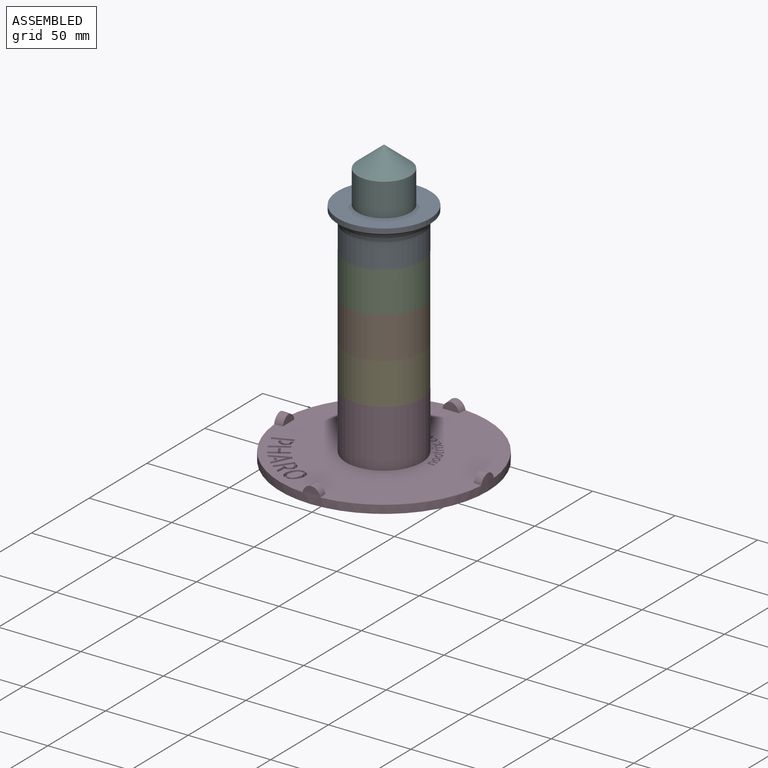
[diagram: assembled view]
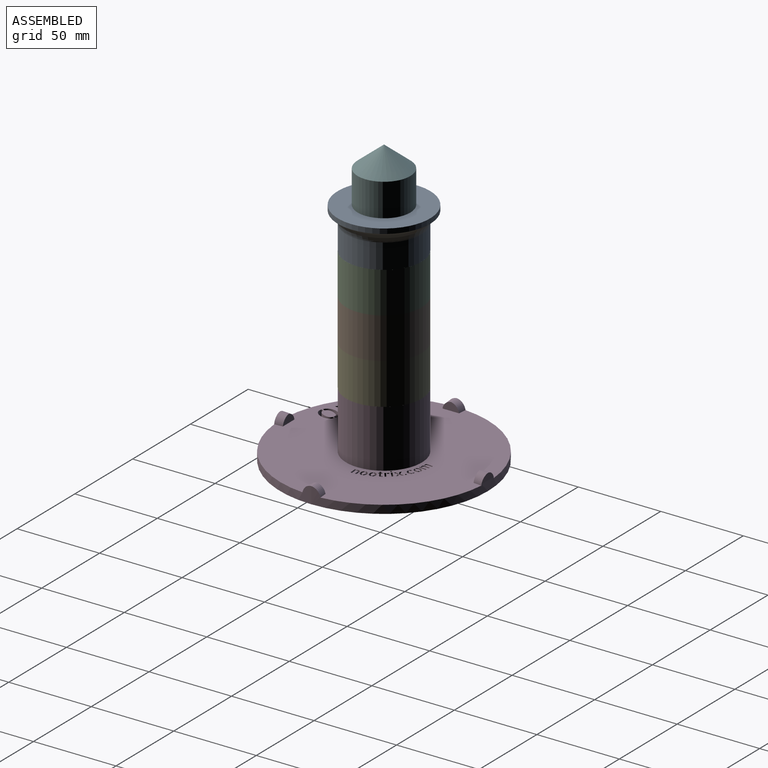
[diagram: assembled view, second angle]
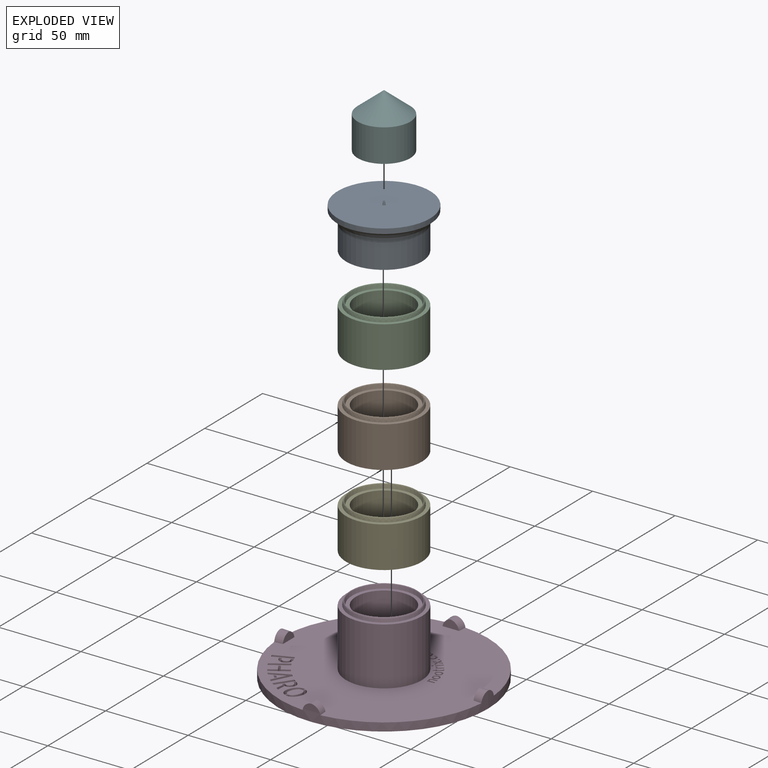
[diagram: exploded view]
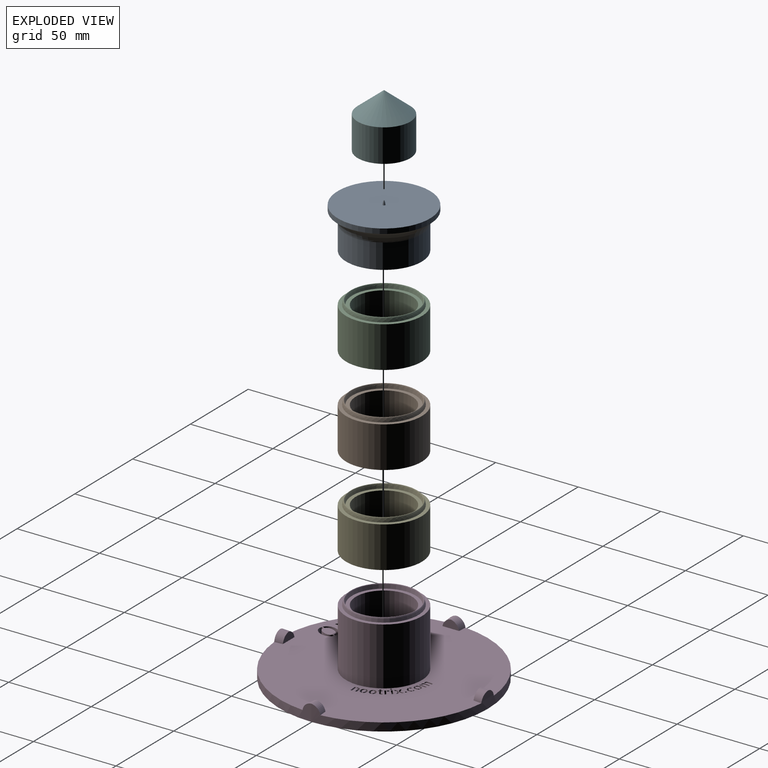
[diagram: exploded view, second angle]
ASSEMBLY  parts=6 mates=5
PART A: 9 faces, bbox 139.1x139.1x95.6 mm
  f0: plane 56x56mm, normal (0,0,1), area 2461mm2, adj f1,f8
  f1: revolved ~2.6x1.6mm, area 9mm2, adj f0
  f2: revolved ~34x17mm, area 0mm2, adj f3
  f3: plane 105.99x105.99mm, normal (0,0,-1), area 226.2mm2, adj f2,f4
  f4: revolved ~42x42mm, area 816.8mm2, adj f3,f5
  f5: plane 46x46mm, normal (0,0,-1), area 275.8mm2, adj f4,f6
  f6: cylinder r=23mm len=46mm, axis (0,0,1), area 2167.5mm2, adj f5,f7
  f7: torus R=32.84mm, axis (0,0,1), area 1395.6mm2, adj f6,f8
  f8: cylinder r=28mm len=56mm, axis (0,0,1), area 527.8mm2, adj f0,f7
PART B: 8 faces, bbox 46x46x27.6 mm
  f0: plane 38x38mm, normal (0,0,-1), area 226.2mm2, adj f1,f7
  f1: revolved ~42x42mm, area 816.6mm2, adj f0,f2
  f2: plane 46x46mm, normal (0,0,-1), area 276.5mm2, adj f1,f3
  f3: cylinder r=23mm len=46mm, axis (0,0,1), area 3612.8mm2, adj f2,f4
  f4: plane 46x46mm, normal (0,0,1), area 302.7mm2, adj f3,f5
  f5: revolved ~41.6x41.6mm, area 700.9mm2, adj f4,f6
  f6: plane 38.4x38.4mm, normal (0,0,1), area 250.2mm2, adj f5,f7
  f7: cylinder r=17mm len=34mm, axis (0,0,1), area 2670.4mm2, adj f0,f6
PART C: same geometry as B
PART D: 390 faces, bbox 126.5x126.5x42.6 mm
  f0: plane 125.53x125.53mm, normal (0,0,1), area 10276.3mm2, adj f3,f4,f8,f9,f10,f11,f12,f13
  f1: plane 126x126mm, normal (0,0,-1), area 11244.9mm2, adj f2,f3,f20,f21,f22,f23,f24,f25
  f2: cylinder r=17mm len=40mm, axis (0,0,1), area 4272.6mm2, adj f1,f7
  f3: cylinder r=63mm len=126mm, axis (0,0,1), area 2138.5mm2, adj f0,f1,f9,f10,f12,f13,f15,f16
  f4: cylinder r=23mm len=46mm, axis (0,0,1), area 5058mm2, adj f0,f5
  f5: plane 46x46mm, normal (0,0,1), area 302.7mm2, adj f4,f6
  f6: revolved ~41.6x41.6mm, area 700.9mm2, adj f5,f7
  f7: plane 38.4x38.4mm, normal (0,0,1), area 250.2mm2, adj f2,f6
  f8: plane 10x4.93mm, normal (-1,0,0), area 35.4mm2, adj f0,f9,f10
  f9: cylinder r=6mm len=5.88mm, axis (-1,0.09,0), area 39.5mm2, adj f0,f3,f8,f10
  f10: cylinder r=6mm len=5.88mm, axis (-1,-0.09,0), area 39.5mm2, adj f0,f3,f8,f9
  f11: plane 10x4.93mm, normal (0,1,0), area 35.4mm2, adj f0,f12,f13
  f12: cylinder r=6mm len=5.88mm, axis (0.09,1,0), area 39.5mm2, adj f0,f3,f11,f13
  f13: cylinder r=6mm len=5.88mm, axis (-0.09,1,0), area 39.5mm2, adj f0,f3,f11,f12
  f14: plane 10x4.93mm, normal (1,0,0), area 35.4mm2, adj f0,f15,f16
  f15: cylinder r=6mm len=5.88mm, axis (1,-0.09,0), area 39.5mm2, adj f0,f3,f14,f16
  f16: cylinder r=6mm len=5.88mm, axis (1,0.09,0), area 39.5mm2, adj f0,f3,f14,f15
  f17: plane 10x4.93mm, normal (0,-1,0), area 35.4mm2, adj f0,f18,f19
  f18: cylinder r=6mm len=5.88mm, axis (-0.09,-1,0), area 39.5mm2, adj f0,f3,f17,f19
  f19: cylinder r=6mm len=5.88mm, axis (0.09,-1,0), area 39.5mm2, adj f0,f3,f17,f18
  f20: plane 10.88x5mm, normal (-0.38,0.93,0), area 58.7mm2, adj f0,f1,f21,f23
  f21: plane 5x1.77mm, normal (-0.93,-0.38,0), area 9.6mm2, adj f0,f1,f20,f22
  f22: plane 10.88x5mm, normal (0.38,-0.93,0), area 58.7mm2, adj f0,f1,f21,f23
  f23: plane 5x1.77mm, normal (0.93,0.38,0), area 9.6mm2, adj f0,f1,f20,f22
  f24: extruded ~5x1.08mm, area 5.9mm2, adj f0,f1,f25,f41
  f25: extruded ~5x1.45mm, area 7.3mm2, adj f0,f1,f24,f26
  f26: extruded ~5x1.87mm, area 9.8mm2, adj f0,f1,f25,f27
  f27: extruded ~5x1.69mm, area 9.8mm2, adj f0,f1,f26,f28
  f28: extruded ~5x1.04mm, area 7.3mm2, adj f0,f1,f27,f29
  f29: extruded ~5x1.08mm, area 5.9mm2, adj f0,f1,f28,f30
  f30: extruded ~5x1.07mm, area 5.4mm2, adj f0,f1,f29,f31
  f31: plane 5x1.45mm, normal (0.92,-0.39,0), area 7.9mm2, adj f0,f1,f30,f32
  f32: extruded ~5x1.86mm, area 9.5mm2, adj f0,f1,f31,f33
  f33: extruded ~5x1.78mm, area 9.3mm2, adj f0,f1,f32,f34
  f34: extruded ~5x1.62mm, area 10.5mm2, adj f0,f1,f33,f35
  f35: extruded ~5x2.18mm, area 12.8mm2, adj f0,f1,f34,f36
  f36: extruded ~5x2.45mm, area 12.7mm2, adj f0,f1,f35,f37
  f37: extruded ~5x2.08mm, area 10.5mm2, adj f0,f1,f36,f38
  f38: extruded ~5x1.65mm, area 9.4mm2, adj f0,f1,f37,f39
  f39: extruded ~5x1.48mm, area 9.4mm2, adj f0,f1,f38,f40
  f40: plane 5x1.45mm, normal (0.92,-0.39,0), area 7.9mm2, adj f0,f1,f39,f41
  f41: extruded ~5x0.79mm, area 5.3mm2, adj f0,f1,f24,f40
  f42: plane 11.25x5.28mm, normal (0.43,-0.91,0), area 62.1mm2, adj f0,f1,f43,f48
  f43: plane 5x1.42mm, normal (0.71,0.7,0), area 10mm2, adj f0,f1,f42,f44
  f44: plane 8.43x5mm, normal (-0.43,0.9,0), area 46.6mm2, adj f0,f1,f43,f45
  f45: plane 8.34x5mm, normal (0.9,-0.45,0), area 46.5mm2, adj f0,f1,f44,f46
  f46: plane 5x1.41mm, normal (0.71,0.7,0), area 9.9mm2, adj f0,f1,f45,f47
  f47: plane 11.13x5.51mm, normal (-0.9,0.44,0), area 62.1mm2, adj f0,f1,f46,f48
  f48: plane 5x1.35mm, normal (-0.71,-0.7,0), area 9.5mm2, adj f0,f1,f42,f47
  f49: plane 9.88x6.36mm, normal (-0.54,0.84,0), area 58.7mm2, adj f0,f1,f50,f52
  f50: plane 5x1.63mm, normal (-0.84,-0.54,0), area 9.7mm2, adj f0,f1,f49,f51
  f51: plane 9.88x6.36mm, normal (0.54,-0.84,0), area 58.7mm2, adj f0,f1,f50,f52
  f52: plane 5x1.63mm, normal (0.84,0.54,0), area 9.7mm2, adj f0,f1,f49,f51
  f53: plane 5x3.73mm, normal (-0.84,-0.54,0), area 22.2mm2, adj f0,f1,f54,f60
  f54: plane 5x1.1mm, normal (0.54,-0.84,0), area 6.5mm2, adj f0,f1,f53,f55
  f55: plane 5x3.73mm, normal (0.84,0.54,0), area 22.2mm2, adj f0,f1,f54,f56
  f56: plane 5x4.45mm, normal (0.54,-0.84,0), area 26.5mm2, adj f0,f1,f55,f57
  f57: plane 5x1.61mm, normal (0.84,0.54,0), area 9.6mm2, adj f0,f1,f56,f58
  f58: plane 9.88x6.36mm, normal (-0.54,0.84,0), area 58.7mm2, adj f0,f1,f57,f59
  f59: plane 5x1.61mm, normal (-0.84,-0.54,0), area 9.6mm2, adj f0,f1,f58,f60
  f60: plane 5x4.33mm, normal (0.54,-0.84,0), area 25.7mm2, adj f0,f1,f53,f59
  f61: plane 5x0.72mm, normal (0.93,0.38,0), area 3.9mm2, adj f0,f1,f62,f82
  f62: extruded ~5x1.18mm, area 6.1mm2, adj f0,f1,f61,f63
  f63: extruded ~5x0.86mm, area 4.5mm2, adj f0,f1,f62,f64
  f64: extruded ~5x0.57mm, area 4mm2, adj f0,f1,f63,f65
  f65: extruded ~5x0.58mm, area 3.3mm2, adj f0,f1,f64,f66
  f66: extruded ~5x1.18mm, area 6.1mm2, adj f0,f1,f65,f67
  f67: extruded ~5x0.88mm, area 4.5mm2, adj f0,f1,f66,f68
  f68: extruded ~5x0.6mm, area 3.7mm2, adj f0,f1,f67,f69
  f69: extruded ~5x0.6mm, area 3.5mm2, adj f0,f1,f68,f70
  f70: plane 5x1.02mm, normal (-0.93,-0.38,0), area 5.5mm2, adj f0,f1,f69,f71
  f71: plane 5x1.3mm, normal (0.38,-0.93,0), area 7mm2, adj f0,f1,f70,f72
  f72: plane 5x0.71mm, normal (0.93,0.38,0), area 3.8mm2, adj f0,f1,f71,f73
  f73: extruded ~5x1.46mm, area 8.6mm2, adj f0,f1,f72,f74
  f74: extruded ~5x1.2mm, area 7.6mm2, adj f0,f1,f73,f75
  f75: extruded ~5x1.45mm, area 7.5mm2, adj f0,f1,f74,f76
  f76: extruded ~5x1.61mm, area 8.3mm2, adj f0,f1,f75,f77
  f77: extruded ~5x1.28mm, area 7.9mm2, adj f0,f1,f76,f78
  f78: extruded ~5x1.31mm, area 7.5mm2, adj f0,f1,f77,f79
  f79: extruded ~5x1.49mm, area 7.5mm2, adj f0,f1,f78,f80
  f80: extruded ~5x1.46mm, area 7.5mm2, adj f0,f1,f79,f81
  f81: plane 5x0.75mm, normal (-0.93,-0.38,0), area 4.1mm2, adj f0,f1,f80,f82
  f82: plane 5x1.34mm, normal (0.38,-0.93,0), area 7.2mm2, adj f0,f1,f61,f81
  f83: extruded ~5x1.71mm, area 11.4mm2, adj f0,f1,f84,f107
  f84: extruded ~5x1.46mm, area 7.9mm2, adj f0,f1,f83,f85
  f85: extruded ~5x1.48mm, area 7.5mm2, adj f0,f1,f84,f86
  f86: extruded ~5x1.33mm, area 7.5mm2, adj f0,f1,f85,f87
  f87: extruded ~5x1.09mm, area 7.5mm2, adj f0,f1,f86,f88
  f88: plane 5x0.67mm, normal (-0.56,-0.83,0), area 4.1mm2, adj f0,f1,f87,f89
  f89: plane 5x1.2mm, normal (0.83,-0.56,0), area 7.2mm2, adj f0,f1,f88,f90
  f90: plane 5x0.64mm, normal (0.56,0.83,0), area 3.9mm2, adj f0,f1,f89,f91
  f91: extruded ~5x0.86mm, area 6.1mm2, adj f0,f1,f90,f92
  f92: extruded ~5x0.86mm, area 4.5mm2, adj f0,f1,f91,f93
  f93: extruded ~5x0.78mm, area 4mm2, adj f0,f1,f92,f94
  f94: extruded ~5x0.59mm, area 3.3mm2, adj f0,f1,f93,f95
  f95: extruded ~5x0.89mm, area 6.1mm2, adj f0,f1,f94,f96
  f96: extruded ~5x0.81mm, area 4.5mm2, adj f0,f1,f95,f97
  f97: extruded ~5x0.75mm, area 3.8mm2, adj f0,f1,f96,f98
  f98: extruded ~5x0.65mm, area 3.6mm2, adj f0,f1,f97,f99
  f99: plane 5x0.9mm, normal (-0.56,-0.83,0), area 5.4mm2, adj f0,f1,f98,f100
  f100: plane 5x1.16mm, normal (0.83,-0.56,0), area 7mm2, adj f0,f1,f99,f101
  f101: plane 5x0.74mm, normal (0.56,0.83,0), area 4.5mm2, adj f0,f1,f100,f102
  f102: extruded ~5x0.14mm, area 0.8mm2, adj f0,f1,f101,f103
  f103: extruded ~5x0.09mm, area 0.5mm2, adj f0,f1,f102,f104
  f104: plane 5x4.76mm, normal (0.99,-0.12,0), area 24mm2, adj f0,f1,f103,f105
  f105: plane 5x1.67mm, normal (0.56,0.83,0), area 10.1mm2, adj f0,f1,f104,f106
  f106: plane 5.33x5mm, normal (-1,0.07,0), area 26.7mm2, adj f0,f1,f105,f107
  f107: extruded ~5x2.06mm, area 10.5mm2, adj f0,f1,f83,f106
  f108: extruded ~5x1.64mm, area 9.4mm2, adj f0,f1,f109,f125
  f109: extruded ~5x1.49mm, area 9.4mm2, adj f0,f1,f108,f110
  f110: plane 5x1.45mm, normal (-0.92,0.39,0), area 7.9mm2, adj f0,f1,f109,f111
  f111: extruded ~5x0.79mm, area 5.3mm2, adj f0,f1,f110,f112
  f112: extruded ~5x1.08mm, area 5.9mm2, adj f0,f1,f111,f113
  f113: extruded ~5x1.46mm, area 7.3mm2, adj f0,f1,f112,f114
  f114: extruded ~5x1.87mm, area 9.8mm2, adj f0,f1,f113,f115
  f115: extruded ~5x1.69mm, area 9.7mm2, adj f0,f1,f114,f116
  f116: extruded ~5x1.04mm, area 7.3mm2, adj f0,f1,f115,f117
  f117: extruded ~5x1.08mm, area 5.8mm2, adj f0,f1,f116,f118
  f118: extruded ~5x1.07mm, area 5.4mm2, adj f0,f1,f117,f119
  f119: plane 5x1.47mm, normal (-0.92,0.39,0), area 8mm2, adj f0,f1,f118,f120
  f120: extruded ~5x1.86mm, area 9.5mm2, adj f0,f1,f119,f121
  f121: extruded ~5x1.79mm, area 9.4mm2, adj f0,f1,f120,f122
  f122: extruded ~5x1.61mm, area 10.5mm2, adj f0,f1,f121,f123
  f123: extruded ~5x2.17mm, area 12.7mm2, adj f0,f1,f122,f124
  f124: extruded ~5x2.45mm, area 12.8mm2, adj f0,f1,f123,f125
  f125: extruded ~5x2.08mm, area 10.5mm2, adj f0,f1,f108,f124
  f126: plane 9.7x6.62mm, normal (-0.83,0.56,0), area 58.7mm2, adj f0,f1,f127,f129
  f127: plane 5x1.58mm, normal (-0.56,-0.83,0), area 9.6mm2, adj f0,f1,f126,f128
  f128: plane 9.7x6.62mm, normal (0.83,-0.56,0), area 58.7mm2, adj f0,f1,f127,f129
  f129: plane 5x1.58mm, normal (0.56,0.83,0), area 9.6mm2, adj f0,f1,f126,f128
  f130: plane 5x2.17mm, normal (0.71,0.7,0), area 15.2mm2, adj f0,f1,f131,f133
  f131: plane 5x1.24mm, normal (-0.9,0.44,0), area 6.9mm2, adj f0,f1,f130,f132
  f132: plane 5x1.52mm, normal (-0.71,-0.7,0), area 10.7mm2, adj f0,f1,f131,f133
  f133: plane 5x1.24mm, normal (0.43,-0.9,0), area 6.8mm2, adj f0,f1,f130,f132
  f134: plane 5x0.92mm, normal (-1,-0.08,0), area 4.6mm2, adj f0,f1,f135,f138
  f135: plane 5x3.85mm, normal (0.08,-1,0), area 19.3mm2, adj f0,f1,f134,f136
  f136: plane 5x0.42mm, normal (0.3,-0.95,0), area 2.2mm2, adj f0,f1,f135,f137
  f137: plane 5x0.82mm, normal (1,0.08,0), area 4.1mm2, adj f0,f1,f136,f138
  f138: plane 5x4.28mm, normal (-0.08,1,0), area 21.5mm2, adj f0,f1,f134,f137
  f139: extruded ~5x0.62mm, area 3.7mm2, adj f0,f1,f140,f154
  f140: extruded ~5x0.65mm, area 3.9mm2, adj f0,f1,f139,f141
  f141: plane 5x0.7mm, normal (0.95,-0.31,0), area 3.7mm2, adj f0,f1,f140,f142
  f142: extruded ~5x0.29mm, area 2mm2, adj f0,f1,f141,f143
  f143: extruded ~5x0.39mm, area 2.1mm2, adj f0,f1,f142,f144
  f144: extruded ~5x0.48mm, area 2.4mm2, adj f0,f1,f143,f145
  f145: extruded ~5x0.52mm, area 2.7mm2, adj f0,f1,f144,f146
  f146: extruded ~5x0.84mm, area 5mm2, adj f0,f1,f145,f147
  f147: extruded ~5x0.73mm, area 4mm2, adj f0,f1,f146,f148
  f148: plane 5x0.68mm, normal (0.95,-0.31,0), area 3.5mm2, adj f0,f1,f147,f149
  f149: extruded ~5x0.77mm, area 3.9mm2, adj f0,f1,f148,f150
  f150: extruded ~5x0.69mm, area 3.7mm2, adj f0,f1,f149,f151
  f151: extruded ~5x0.56mm, area 3.8mm2, adj f0,f1,f150,f152
  f152: extruded ~5x0.74mm, area 4.2mm2, adj f0,f1,f151,f153
  f153: extruded ~5x0.82mm, area 4.2mm2, adj f0,f1,f152,f154
  f154: extruded ~5x0.76mm, area 3.9mm2, adj f0,f1,f139,f153
  f155: extruded ~5x0.4mm, area 2.1mm2, adj f0,f1,f156,f170
  f156: extruded ~5x0.48mm, area 2.4mm2, adj f0,f1,f155,f157
  f157: extruded ~5x0.52mm, area 2.7mm2, adj f0,f1,f156,f158
  f158: extruded ~5x0.83mm, area 5mm2, adj f0,f1,f157,f159
  f159: extruded ~5x0.74mm, area 4mm2, adj f0,f1,f158,f160
  f160: plane 5x0.7mm, normal (-0.95,0.31,0), area 3.7mm2, adj f0,f1,f159,f161
  f161: extruded ~5x0.77mm, area 3.9mm2, adj f0,f1,f160,f162
  f162: extruded ~5x0.69mm, area 3.7mm2, adj f0,f1,f161,f163
  f163: extruded ~5x0.56mm, area 3.8mm2, adj f0,f1,f162,f164
  f164: extruded ~5x0.75mm, area 4.2mm2, adj f0,f1,f163,f165
  f165: extruded ~5x0.83mm, area 4.2mm2, adj f0,f1,f164,f166
  f166: extruded ~5x0.76mm, area 3.9mm2, adj f0,f1,f165,f167
  f167: extruded ~5x0.63mm, area 3.7mm2, adj f0,f1,f166,f168
  f168: extruded ~5x0.66mm, area 4mm2, adj f0,f1,f167,f169
  f169: plane 5x0.68mm, normal (-0.95,0.31,0), area 3.6mm2, adj f0,f1,f168,f170
  f170: extruded ~5x0.29mm, area 2mm2, adj f0,f1,f155,f169
  f171: plane 5x0.92mm, normal (-0.11,-0.99,0), area 4.6mm2, adj f0,f1,f172,f175
  f172: plane 5x3.83mm, normal (0.99,-0.11,0), area 19.3mm2, adj f0,f1,f171,f173
  f173: plane 5x0.45mm, normal (0.99,0.11,0), area 2.3mm2, adj f0,f1,f172,f174
  f174: plane 5x0.82mm, normal (0.11,0.99,0), area 4.1mm2, adj f0,f1,f173,f175
  f175: plane 5x4.27mm, normal (-0.99,0.11,0), area 21.5mm2, adj f0,f1,f171,f174
  f176: plane 5x0.6mm, normal (-0.99,0.11,0), area 3mm2, adj f0,f1,f177,f191
  f177: extruded ~5x0.42mm, area 2.1mm2, adj f0,f1,f176,f178
  f178: extruded ~5x0.23mm, area 1.1mm2, adj f0,f1,f177,f179
  f179: extruded ~5x0.3mm, area 1.7mm2, adj f0,f1,f178,f180
  f180: extruded ~5x0.3mm, area 1.6mm2, adj f0,f1,f179,f181
  f181: extruded ~5x0.42mm, area 2.1mm2, adj f0,f1,f180,f182
  f182: extruded ~5x0.49mm, area 2.5mm2, adj f0,f1,f181,f183
  f183: plane 5x2.32mm, normal (-0.99,0.11,0), area 11.7mm2, adj f0,f1,f182,f184
  f184: plane 5x0.91mm, normal (-0.11,-0.99,0), area 4.6mm2, adj f0,f1,f183,f185
  f185: plane 5x2.91mm, normal (0.99,-0.11,0), area 14.6mm2, adj f0,f1,f184,f186
  f186: extruded ~5x0.57mm, area 2.9mm2, adj f0,f1,f185,f187
  f187: extruded ~5x0.48mm, area 2.6mm2, adj f0,f1,f186,f188
  f188: extruded ~5x0.36mm, area 2.5mm2, adj f0,f1,f187,f189
  f189: extruded ~5x0.47mm, area 2.5mm2, adj f0,f1,f188,f190
  f190: extruded ~5x0.4mm, area 2mm2, adj f0,f1,f189,f191
  f191: extruded ~5x0.44mm, area 2.3mm2, adj f0,f1,f176,f190
  f192: extruded ~5x0.42mm, area 2.1mm2, adj f0,f1,f193,f208
  f193: extruded ~5x0.41mm, area 2.2mm2, adj f0,f1,f192,f194
  f194: plane 5x0.6mm, normal (-0.99,0.11,0), area 3mm2, adj f0,f1,f193,f195
  f195: extruded ~5x0.37mm, area 1.9mm2, adj f0,f1,f194,f196
  f196: extruded ~5x0.27mm, area 1.4mm2, adj f0,f1,f195,f197
  f197: extruded ~5x0.3mm, area 1.7mm2, adj f0,f1,f196,f198
  f198: extruded ~5x0.3mm, area 1.6mm2, adj f0,f1,f197,f199
  f199: extruded ~5x0.42mm, area 2.1mm2, adj f0,f1,f198,f200
  f200: plane 5x2.81mm, normal (-0.99,0.11,0), area 14.1mm2, adj f0,f1,f199,f201
  f201: plane 5x0.92mm, normal (-0.11,-0.99,0), area 4.6mm2, adj f0,f1,f200,f202
  f202: plane 5x2.4mm, normal (0.99,-0.11,0), area 12.1mm2, adj f0,f1,f201,f203
  f203: extruded ~5x0.37mm, area 1.9mm2, adj f0,f1,f202,f204
  f204: extruded ~5x0.35mm, area 1.7mm2, adj f0,f1,f203,f205
  f205: extruded ~5x0.33mm, area 1.6mm2, adj f0,f1,f204,f206
  f206: extruded ~5x0.31mm, area 1.6mm2, adj f0,f1,f205,f207
  f207: extruded ~5x0.48mm, area 3.2mm2, adj f0,f1,f206,f208
  f208: extruded ~5x0.57mm, area 3.1mm2, adj f0,f1,f192,f207
  f209: extruded ~5x0.71mm, area 3.7mm2, adj f0,f1,f210,f224
  f210: extruded ~5x0.78mm, area 3.9mm2, adj f0,f1,f209,f211
  f211: plane 5x0.67mm, normal (0.4,-0.92,0), area 3.7mm2, adj f0,f1,f210,f212
  f212: extruded ~5x0.39mm, area 2mm2, adj f0,f1,f211,f213
  f213: extruded ~5x0.37mm, area 2.1mm2, adj f0,f1,f212,f214
  f214: extruded ~5x0.35mm, area 2.4mm2, adj f0,f1,f213,f215
  f215: extruded ~5x0.47mm, area 2.7mm2, adj f0,f1,f214,f216
  f216: extruded ~5x0.97mm, area 5mm2, adj f0,f1,f215,f217
  f217: extruded ~5x0.68mm, area 4mm2, adj f0,f1,f216,f218
  f218: plane 5x0.65mm, normal (0.4,-0.92,0), area 3.5mm2, adj f0,f1,f217,f219
  f219: extruded ~5x0.59mm, area 3.9mm2, adj f0,f1,f218,f220
  f220: extruded ~5x0.65mm, area 3.7mm2, adj f0,f1,f219,f221
  f221: extruded ~5x0.76mm, area 3.8mm2, adj f0,f1,f220,f222
  f222: extruded ~5x0.81mm, area 4.2mm2, adj f0,f1,f221,f223
  f223: extruded ~5x0.71mm, area 4.2mm2, adj f0,f1,f222,f224
  f224: extruded ~5x0.6mm, area 3.9mm2, adj f0,f1,f209,f223
  f225: plane 5x0.53mm, normal (0.52,-0.85,0), area 3.1mm2, adj f0,f1,f226,f249
  f226: plane 5x0.58mm, normal (0.85,0.52,0), area 3.4mm2, adj f0,f1,f225,f227
  f227: plane 5x1.04mm, normal (0.52,-0.85,0), area 6.1mm2, adj f0,f1,f226,f228
  f228: plane 5x0.79mm, normal (0.85,0.52,0), area 4.6mm2, adj f0,f1,f227,f229
  f229: plane 5x1.04mm, normal (-0.52,0.85,0), area 6.1mm2, adj f0,f1,f228,f230
  f230: plane 5x0.48mm, normal (0.85,0.52,0), area 2.8mm2, adj f0,f1,f229,f231
  f231: plane 5x0.53mm, normal (-0.52,0.85,0), area 3.1mm2, adj f0,f1,f230,f232
  f232: plane 5x0.48mm, normal (-0.85,-0.52,0), area 2.8mm2, adj f0,f1,f231,f233
  f233: plane 5x1.98mm, normal (-0.52,0.85,0), area 11.6mm2, adj f0,f1,f232,f234
  f234: extruded ~5x0.26mm, area 1.6mm2, adj f0,f1,f233,f235
  f235: extruded ~5x0.31mm, area 2.2mm2, adj f0,f1,f234,f236
  f236: extruded ~5x0.39mm, area 2.3mm2, adj f0,f1,f235,f237
  f237: extruded ~5x0.46mm, area 2.4mm2, adj f0,f1,f236,f238
  f238: extruded ~5x0.18mm, area 1mm2, adj f0,f1,f237,f239
  f239: extruded ~5x0.2mm, area 1.2mm2, adj f0,f1,f238,f240
  f240: extruded ~5x0.2mm, area 1.2mm2, adj f0,f1,f239,f241
  f241: extruded ~5x0.17mm, area 1mm2, adj f0,f1,f240,f242
  f242: extruded ~5x0.16mm, area 1mm2, adj f0,f1,f241,f243
  f243: plane 5x0.48mm, normal (0.52,-0.85,0), area 2.8mm2, adj f0,f1,f242,f244
  f244: extruded ~5x0.29mm, area 1.7mm2, adj f0,f1,f243,f245
  f245: extruded ~5x0.29mm, area 1.5mm2, adj f0,f1,f244,f246
  f246: extruded ~5x0.28mm, area 1.5mm2, adj f0,f1,f245,f247
  f247: extruded ~5x0.31mm, area 2.1mm2, adj f0,f1,f246,f248
  f248: plane 5x2.02mm, normal (0.52,-0.85,0), area 11.8mm2, adj f0,f1,f247,f249
  f249: plane 5x0.58mm, normal (-0.85,-0.52,0), area 3.4mm2, adj f0,f1,f225,f248
  f250: extruded ~5x0.25mm, area 1.7mm2, adj f0,f1,f251,f256
  f251: extruded ~5x0.45mm, area 2.6mm2, adj f0,f1,f250,f252
  f252: plane 5x0.76mm, normal (0.61,-0.79,0), area 4.8mm2, adj f0,f1,f251,f253
  f253: extruded ~5x0.54mm, area 3.6mm2, adj f0,f1,f252,f254
  f254: extruded ~5x0.41mm, area 2.4mm2, adj f0,f1,f253,f255
  f255: plane 5x0.61mm, normal (-0.61,0.79,0), area 3.9mm2, adj f0,f1,f254,f256
  f256: extruded ~5x0.26mm, area 1.7mm2, adj f0,f1,f250,f255
  f257: plane 5x0.73mm, normal (-0.79,-0.61,0), area 4.6mm2, adj f0,f1,f258,f261
  f258: plane 5x3.04mm, normal (0.61,-0.79,0), area 19.3mm2, adj f0,f1,f257,f259
  f259: plane 5x0.35mm, normal (0.77,-0.64,0), area 2.3mm2, adj f0,f1,f258,f260
  f260: plane 5x0.65mm, normal (0.79,0.61,0), area 4.1mm2, adj f0,f1,f259,f261
  f261: plane 5x3.39mm, normal (-0.61,0.79,0), area 21.5mm2, adj f0,f1,f257,f260
  f262: extruded ~5x0.46mm, area 2.4mm2, adj f0,f1,f263,f279
  f263: extruded ~5x0.43mm, area 2.4mm2, adj f0,f1,f262,f264
  f264: plane 5x0.58mm, normal (-0.08,1,0), area 2.9mm2, adj f0,f1,f263,f265
  f265: extruded ~5x0.34mm, area 1.8mm2, adj f0,f1,f264,f266
  f266: extruded ~5x0.28mm, area 1.4mm2, adj f0,f1,f265,f267
  f267: extruded ~5x0.41mm, area 2.1mm2, adj f0,f1,f266,f268
  f268: extruded ~5x0.27mm, area 1.9mm2, adj f0,f1,f267,f269
  f269: extruded ~5x0.41mm, area 2.2mm2, adj f0,f1,f268,f270
  f270: extruded ~5x0.49mm, area 2.5mm2, adj f0,f1,f269,f271
  f271: plane 5x2.33mm, normal (-0.08,1,0), area 11.7mm2, adj f0,f1,f270,f272
  f272: plane 5x0.93mm, normal (-1,-0.08,0), area 4.6mm2, adj f0,f1,f271,f273
  f273: plane 5x2.41mm, normal (0.08,-1,0), area 12.1mm2, adj f0,f1,f272,f274
  f274: extruded ~5x0.37mm, area 1.9mm2, adj f0,f1,f273,f275
  f275: extruded ~5x0.37mm, area 1.9mm2, adj f0,f1,f274,f276
  f276: extruded ~5x0.35mm, area 1.9mm2, adj f0,f1,f275,f277
  f277: extruded ~5x0.28mm, area 1.8mm2, adj f0,f1,f276,f278
  f278: extruded ~5x0.5mm, area 3mm2, adj f0,f1,f277,f279
  f279: extruded ~5x0.59mm, area 3mm2, adj f0,f1,f262,f278
  f280: extruded ~5x0.34mm, area 2.1mm2, adj f0,f1,f281,f295
  f281: extruded ~5x0.39mm, area 2.4mm2, adj f0,f1,f280,f282
  f282: extruded ~5x0.5mm, area 2.7mm2, adj f0,f1,f281,f283
  f283: extruded ~5x0.98mm, area 5mm2, adj f0,f1,f282,f284
  f284: extruded ~5x0.61mm, area 4mm2, adj f0,f1,f283,f285
  f285: plane 5x0.71mm, normal (-0.24,0.97,0), area 3.7mm2, adj f0,f1,f284,f286
  f286: extruded ~5x0.68mm, area 3.9mm2, adj f0,f1,f285,f287
  f287: extruded ~5x0.59mm, area 3.7mm2, adj f0,f1,f286,f288
  f288: extruded ~5x0.74mm, area 3.8mm2, adj f0,f1,f287,f289
  f289: extruded ~5x0.83mm, area 4.2mm2, adj f0,f1,f288,f290
  f290: extruded ~5x0.78mm, area 4.2mm2, adj f0,f1,f289,f291
  f291: extruded ~5x0.58mm, area 3.9mm2, adj f0,f1,f290,f292
  f292: extruded ~5x0.67mm, area 3.7mm2, adj f0,f1,f291,f293
  f293: extruded ~5x0.79mm, area 4mm2, adj f0,f1,f292,f294
  f294: plane 5x0.7mm, normal (-0.24,0.97,0), area 3.6mm2, adj f0,f1,f293,f295
  f295: extruded ~5x0.39mm, area 2mm2, adj f0,f1,f280,f294
  f296: extruded ~5x0.67mm, area 3.7mm2, adj f0,f1,f297,f311
  f297: extruded ~5x0.78mm, area 3.9mm2, adj f0,f1,f296,f298
  f298: plane 5x0.71mm, normal (0.24,-0.97,0), area 3.7mm2, adj f0,f1,f297,f299
  f299: extruded ~5x0.38mm, area 2mm2, adj f0,f1,f298,f300
  f300: extruded ~5x0.33mm, area 2.1mm2, adj f0,f1,f299,f301
  f301: extruded ~5x0.4mm, area 2.4mm2, adj f0,f1,f300,f302
  f302: extruded ~5x0.5mm, area 2.7mm2, adj f0,f1,f301,f303
  f303: extruded ~5x0.98mm, area 5mm2, adj f0,f1,f302,f304
  f304: extruded ~5x0.61mm, area 4mm2, adj f0,f1,f303,f305
  f305: plane 5x0.69mm, normal (0.24,-0.97,0), area 3.5mm2, adj f0,f1,f304,f306
  f306: extruded ~5x0.67mm, area 3.9mm2, adj f0,f1,f305,f307
  f307: extruded ~5x0.58mm, area 3.7mm2, adj f0,f1,f306,f308
  f308: extruded ~5x0.74mm, area 3.8mm2, adj f0,f1,f307,f309
  f309: extruded ~5x0.83mm, area 4.2mm2, adj f0,f1,f308,f310
  f310: extruded ~5x0.77mm, area 4.2mm2, adj f0,f1,f309,f311
  f311: extruded ~5x0.57mm, area 3.9mm2, adj f0,f1,f296,f310
  f312: extruded ~5x0.38mm, area 2.1mm2, adj f0,f1,f313,f327
  f313: extruded ~5x0.34mm, area 2.4mm2, adj f0,f1,f312,f314
  f314: extruded ~5x0.46mm, area 2.7mm2, adj f0,f1,f313,f315
  f315: extruded ~5x0.97mm, area 5mm2, adj f0,f1,f314,f316
  f316: extruded ~5x0.69mm, area 4mm2, adj f0,f1,f315,f317
  f317: plane 5x0.67mm, normal (-0.4,0.92,0), area 3.7mm2, adj f0,f1,f316,f318
  f318: extruded ~5x0.6mm, area 3.9mm2, adj f0,f1,f317,f319
  f319: extruded ~5x0.65mm, area 3.7mm2, adj f0,f1,f318,f320
  f320: extruded ~5x0.76mm, area 3.8mm2, adj f0,f1,f319,f321
  f321: extruded ~5x0.81mm, area 4.2mm2, adj f0,f1,f320,f322
  f322: extruded ~5x0.71mm, area 4.2mm2, adj f0,f1,f321,f323
  f323: extruded ~5x0.6mm, area 3.9mm2, adj f0,f1,f322,f324
  f324: extruded ~5x0.72mm, area 3.7mm2, adj f0,f1,f323,f325
  f325: extruded ~5x0.78mm, area 4mm2, adj f0,f1,f324,f326
  f326: plane 5x0.66mm, normal (-0.4,0.92,0), area 3.6mm2, adj f0,f1,f325,f327
  f327: extruded ~5x0.39mm, area 2mm2, adj f0,f1,f312,f326
  f328: extruded ~5x0.4mm, area 2.1mm2, adj f0,f1,f329,f335
  f329: extruded ~5x0.34mm, area 2.1mm2, adj f0,f1,f328,f330
  f330: extruded ~5x0.41mm, area 2.1mm2, adj f0,f1,f329,f331
  f331: extruded ~5x0.34mm, area 2.1mm2, adj f0,f1,f330,f332
  f332: extruded ~5x0.41mm, area 2.2mm2, adj f0,f1,f331,f333
  f333: extruded ~5x0.35mm, area 2.2mm2, adj f0,f1,f332,f334
  f334: extruded ~5x0.41mm, area 2.1mm2, adj f0,f1,f333,f335
  f335: extruded ~5x0.34mm, area 2.2mm2, adj f0,f1,f328,f334
  f336: extruded ~5x0.56mm, area 3.7mm2, adj f0,f1,f337,f341
  f337: plane 5x0.65mm, normal (-0.89,0.45,0), area 3.7mm2, adj f0,f1,f336,f338
  f338: extruded ~5x0.42mm, area 2.8mm2, adj f0,f1,f337,f339
  f339: extruded ~5x0.37mm, area 2mm2, adj f0,f1,f338,f340
  f340: plane 5x0.59mm, normal (0.4,-0.92,0), area 3.2mm2, adj f0,f1,f339,f341
  f341: extruded ~5x0.65mm, area 3.6mm2, adj f0,f1,f336,f340
  f342: extruded ~5x0.68mm, area 3.7mm2, adj f0,f1,f343,f357
  f343: extruded ~5x0.58mm, area 3.9mm2, adj f0,f1,f342,f344
  f344: plane 5x0.67mm, normal (0.89,-0.45,0), area 3.8mm2, adj f0,f1,f343,f345
  f345: extruded ~5x0.3mm, area 2mm2, adj f0,f1,f344,f346
  f346: extruded ~5x0.4mm, area 2.1mm2, adj f0,f1,f345,f347
  f347: extruded ~5x0.46mm, area 2.3mm2, adj f0,f1,f346,f348
  f348: extruded ~5x0.5mm, area 2.7mm2, adj f0,f1,f347,f349
  f349: extruded ~5x0.73mm, area 4.9mm2, adj f0,f1,f348,f350
  f350: extruded ~5x0.75mm, area 4mm2, adj f0,f1,f349,f351
  f351: plane 5x0.66mm, normal (0.89,-0.45,0), area 3.7mm2, adj f0,f1,f350,f352
  f352: extruded ~5x0.76mm, area 3.9mm2, adj f0,f1,f351,f353
  f353: extruded ~5x0.73mm, area 3.7mm2, adj f0,f1,f352,f354
  f354: extruded ~5x0.63mm, area 3.8mm2, adj f0,f1,f353,f355
  f355: extruded ~5x0.67mm, area 4.1mm2, adj f0,f1,f354,f356
  f356: extruded ~5x0.79mm, area 4.2mm2, adj f0,f1,f355,f357
  f357: extruded ~5x0.77mm, area 3.9mm2, adj f0,f1,f342,f356
  f358: extruded ~5x0.66mm, area 3.4mm2, adj f0,f1,f359,f363
  f359: plane 5x0.6mm, normal (0.99,0.13,0), area 3mm2, adj f0,f1,f358,f360
  f360: extruded ~5x0.44mm, area 2.2mm2, adj f0,f1,f359,f361
  f361: extruded ~5x0.48mm, area 2.4mm2, adj f0,f1,f360,f362
  f362: plane 5x0.67mm, normal (-0.89,0.45,0), area 3.8mm2, adj f0,f1,f361,f363
  f363: extruded ~5x0.68mm, area 3.5mm2, adj f0,f1,f358,f362
  f364: plane 5x3.12mm, normal (-0.69,0.73,0), area 21.5mm2, adj f0,f1,f365,f367
  f365: plane 5x0.68mm, normal (-0.73,-0.69,0), area 4.6mm2, adj f0,f1,f364,f366
  f366: plane 5x3.12mm, normal (0.69,-0.73,0), area 21.5mm2, adj f0,f1,f365,f367
  f367: plane 5x0.68mm, normal (0.73,0.69,0), area 4.6mm2, adj f0,f1,f364,f366
  f368: extruded ~5x0.38mm, area 2.1mm2, adj f0,f1,f369,f375
  f369: extruded ~5x0.39mm, area 2.2mm2, adj f0,f1,f368,f370
  f370: extruded ~5x0.38mm, area 2.1mm2, adj f0,f1,f369,f371
  f371: extruded ~5x0.39mm, area 2.1mm2, adj f0,f1,f370,f372
  f372: extruded ~5x0.38mm, area 2.1mm2, adj f0,f1,f371,f373
  f373: extruded ~5x0.39mm, area 2.1mm2, adj f0,f1,f372,f374
  f374: extruded ~5x0.38mm, area 2.2mm2, adj f0,f1,f373,f375
  f375: extruded ~5x0.39mm, area 2.2mm2, adj f0,f1,f368,f374
  f376: plane 5x1.25mm, normal (-0.77,0.64,0), area 8.1mm2, adj f0,f1,f377,f382
  f377: plane 5x1.57mm, normal (-0.99,0.17,0), area 8mm2, adj f0,f1,f376,f378
  f378: plane 5x0.82mm, normal (-0.64,-0.77,0), area 5.3mm2, adj f0,f1,f377,f379
  f379: plane 5x2.55mm, normal (0.99,-0.11,0), area 12.9mm2, adj f0,f1,f378,f380
  f380: plane 5x2.45mm, normal (0.29,-0.96,0), area 12.8mm2, adj f0,f1,f379,f381
  f381: plane 5x0.8mm, normal (0.64,0.77,0), area 5.2mm2, adj f0,f1,f380,f382
  f382: plane 5x1.45mm, normal (-0.31,0.95,0), area 7.6mm2, adj f0,f1,f376,f381
  f383: plane 5x0.82mm, normal (-0.64,-0.77,0), area 5.3mm2, adj f0,f1,f384,f389
  f384: plane 5x1.42mm, normal (0.33,-0.94,0), area 7.5mm2, adj f0,f1,f383,f385
  f385: plane 5x1.23mm, normal (0.77,-0.64,0), area 8mm2, adj f0,f1,f384,f386
  f386: plane 5x1.59mm, normal (0.98,-0.17,0), area 8.1mm2, adj f0,f1,f385,f387
  f387: plane 5x0.8mm, normal (0.64,0.77,0), area 5.2mm2, adj f0,f1,f386,f388
  f388: plane 5x2.55mm, normal (-0.99,0.11,0), area 12.8mm2, adj f0,f1,f387,f389
  f389: plane 5x2.45mm, normal (-0.3,0.95,0), area 12.9mm2, adj f0,f1,f383,f388
PART E: same geometry as B
PART F: 4 faces, bbox 32x32x33 mm
  f0: revolved ~3x2mm, area 13mm2, adj f1
  f1: plane 32x32mm, normal (0,0,-1), area 801.1mm2, adj f0,f2
  f2: cylinder r=16mm len=32mm, axis (0,0,1), area 2010.6mm2, adj f1,f3
  f3: cone r=16mm half-angle=50.9deg, axis (0,0,-1), area 1036.2mm2, adj f2
PLACE A t=(-134.36,-95.65,9.39)mm
PLACE B t=(-134.36,-95.65,-27.12)mm
PLACE C t=(-134.36,-95.65,-2.12)mm
PLACE D t=(-134.36,-95.65,-77.12)mm
PLACE E t=(-134.36,-95.65,-52.12)mm
PLACE F t=(-134.36,-95.65,-6.91)mm
MATE fastened C.f3 <-> B.f3  axis (0,0,-1) through (-154.36,-95.65,-2.12)mm
MATE fastened D.f2 <-> E.f3  axis (0,0,1) through (-154.36,-95.65,-52.12)mm
MATE fastened E.f3 <-> B.f3  axis (0,0,1) through (-154.36,-95.65,-27.12)mm
MATE fastened F.f2 <-> A.f7  axis (0,0,-1) through (-154.36,-95.65,47.88)mm
MATE fastened A.f6 <-> C.f3  axis (0,0,-1) through (-154.36,-95.65,22.88)mm
